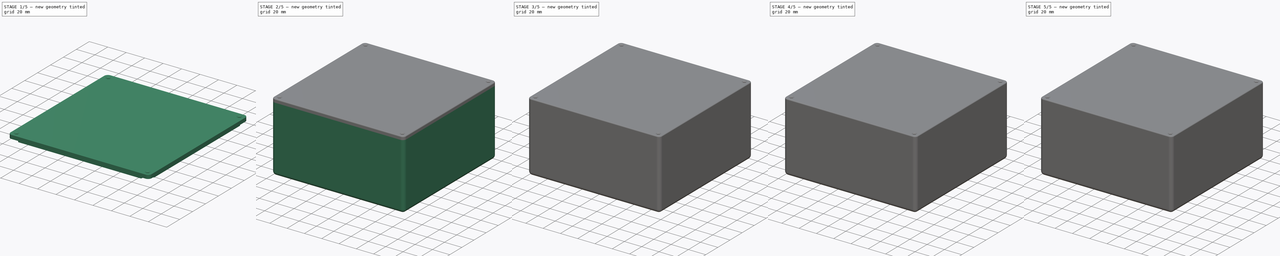
[diagram: build sequence overview — one tinted view per stage of 5, left to right]
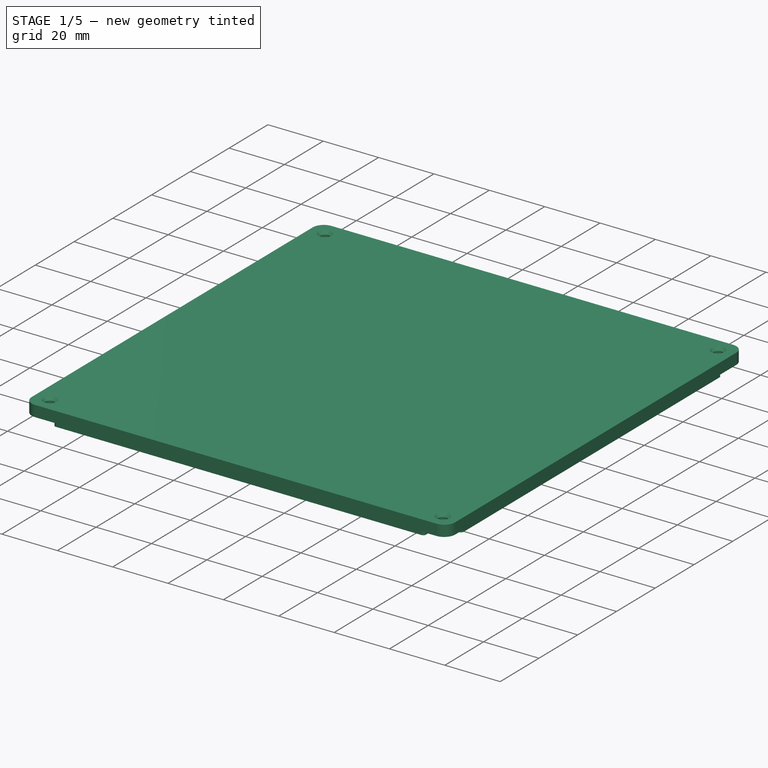
[diagram: stage 1 of 5 — iso view after this stage's code; geometry added in this stage tinted green]
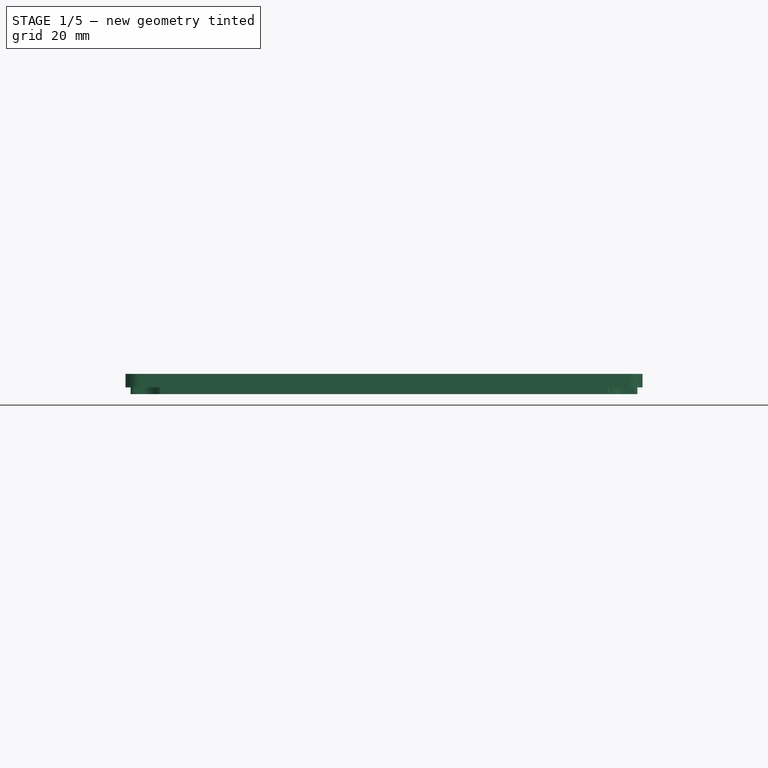
[diagram: stage 1 of 5 — front view after this stage's code; geometry added in this stage tinted green]
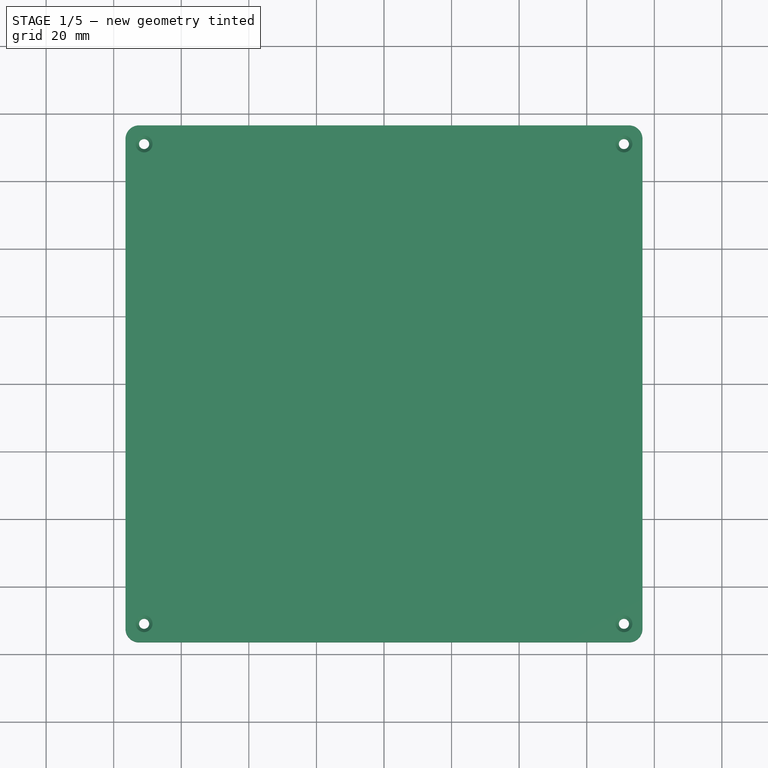
[diagram: stage 1 of 5 — top view after this stage's code; geometry added in this stage tinted green]
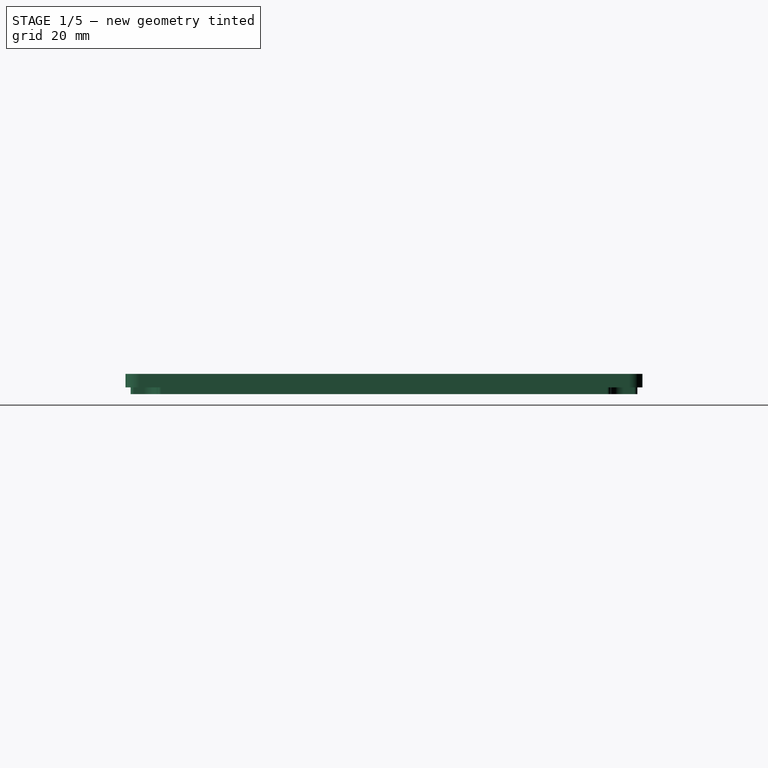
[diagram: stage 1 of 5 — right view after this stage's code; geometry added in this stage tinted green]
FCSTD DOCUMENT  (FreeCAD 1.0R39109 (Git))
Label: generic_parametric_printable_box
License: All rights reserved
LicenseURL: https://en.wikipedia.org/wiki/All_rights_reserved
objects: PartDesign::Body×12, PartDesign::FeatureBase×9, Sketcher::SketchObject×7, PartDesign::Boolean×5, PartDesign::Pad×4, PartDesign::Fillet×4, PartDesign::Mirrored×4, PartDesign::Plane×3, PartDesign::Pocket×3, Spreadsheet::Sheet×2, PartDesign::MultiTransform×2, PartDesign::Chamfer×2, PartDesign::Thickness×1
note: 111 computed .brp shape members not serialized (recipe doc carries the construction recipe); baked Part::Feature solids carry a one-line shape summary decoded from their .brp

FEATURE [PartDesign::Body] Body010
  AllowCompound = false
  Group = -> [Clone008,Thickness,Boolean004,DatumPlane,Sketch002,Pocket,MultiTransform,Mirrored,Mirrored001,Fillet001,Chamfer]
  Origin = -> Origin010
  Tip = -> Chamfer
FEATURE [PartDesign::Plane] DatumPlane001
  AttachmentOffset = pos=(0,0,75) rot=(0,0,1;0rad)
  AttachmentSupport = -> [XY_Plane011]
  Length = 183.6
  MapMode = 5
  Placement = pos=(0,0,75) rot=(0,0,1;0rad)
  ResizeMode = 0
  Width = 183.6
  expr: .AttachmentOffset.Base.z = Spreadsheet.box_inside_height
FEATURE [Sketcher::SketchObject] Sketch003
  ArcFitTolerance = 1e-06
  AttachmentSupport = -> [DatumPlane001]
  FullyConstrained = true
  MakeInternals = false
  MapMode = 5
  Placement = pos=(0,0,75) rot=(0,0,1;0rad)
  expr: Constraints[27] = 4
  expr: Constraints[6] = Spreadsheet.inside_width + Spreadsheet.box_thickness * 2
  expr: Constraints[7] = Spreadsheet.inside_length + Spreadsheet.box_thickness * 2
  sketch-geometry (13):
    g0: LineSegment StartX=-76.5 StartY=72.5 StartZ=0 EndX=-76.5 EndY=-72.5 EndZ=0
    g1: LineSegment StartX=-72.5 StartY=-76.5 StartZ=0 EndX=72.5 EndY=-76.5 EndZ=0
    g2: LineSegment StartX=76.5 StartY=-72.5 StartZ=0 EndX=76.5 EndY=72.5 EndZ=0
    g3: LineSegment StartX=72.5 StartY=76.5 StartZ=0 EndX=-72.5 EndY=76.5 EndZ=0
    g4: GeomPoint [constr] X=0 Y=0 Z=0
    g5: ArcOfCircle CenterX=-72.5 CenterY=72.5 CenterZ=0 NormalX=0 NormalY=0 NormalZ=1 AngleXU=0 Radius=4 StartAngle=1.5708 EndAngle=3.14159
    g6: GeomPoint [constr] X=-76.5 Y=76.5 Z=0
    g7: ArcOfCircle CenterX=72.5 CenterY=72.5 CenterZ=0 NormalX=0 NormalY=0 NormalZ=1 AngleXU=0 Radius=4 StartAngle=-9e-16 EndAngle=1.5708
    g8: GeomPoint [constr] X=76.5 Y=76.5 Z=0
    g9: ArcOfCircle CenterX=72.5 CenterY=-72.5 CenterZ=0 NormalX=0 NormalY=0 NormalZ=1 AngleXU=0 Radius=4 StartAngle=4.71239 EndAngle=6.28319
    g10: GeomPoint [constr] X=76.5 Y=-76.5 Z=0
    g11: ArcOfCircle CenterX=-72.5 CenterY=-72.5 CenterZ=0 NormalX=0 NormalY=0 NormalZ=1 AngleXU=0 Radius=4 StartAngle=3.14159 EndAngle=4.71239
    g12: GeomPoint [constr] X=-76.5 Y=-76.5 Z=0
  constraints (28):
    c: Vertical(g0)
    c: Vertical(g2)
    c: Horizontal(g1)
    c: Horizontal(g3)
    c: Symmetric(g10,g6,g4)
    c: Coincident(g4,g-1)
    c: DistanceX(g6,g8) = 153
    c: DistanceY(g10,g8) = 153
    c: PointOnObject(g6,g0)
    c: PointOnObject(g6,g3)
    c: Tangent(g0,g5) = -1.5708
    c: Tangent(g3,g5) = -1.5708
    c: PointOnObject(g8,g3)
    c: PointOnObject(g8,g2)
    c: Tangent(g3,g7) = -1.5708
    c: Tangent(g2,g7) = -1.5708
    c: PointOnObject(g10,g2)
    c: PointOnObject(g10,g1)
    c: Tangent(g2,g9) = -1.5708
    c: Tangent(g1,g9) = -1.5708
    c: PointOnObject(g12,g1)
    c: PointOnObject(g12,g0)
    c: Tangent(g1,g11) = -1.5708
    c: Tangent(g0,g11) = -1.5708
    c: Equal(g5,g7)
    c: Equal(g7,g9)
    c: Equal(g9,g11)
    c: Radius(g11) = 4
FEATURE [PartDesign::Pad] Pad002
  Direction = (0,0,1)
  Length = 4
  Length2 = 10
  Placement = pos=(0,0,75) rot=(0,0,1;0rad)
  Profile = -> Sketch003
  ReferenceAxis = -> Sketch003 [N_Axis]
  Refine = true
  Suppressed = false
  Type = 0
FEATURE [Sketcher::SketchObject] Sketch004
  ArcFitTolerance = 1e-06
  AttachmentSupport = -> [DatumPlane001]
  FullyConstrained = true
  MakeInternals = false
  MapMode = 5
  Placement = pos=(0,0,75) rot=(0,0,1;0rad)
  expr: Constraints[14] = Spreadsheet.inside_length
  expr: Constraints[15] = Spreadsheet.inside_width
  sketch-geometry (36):
    g0: LineSegment StartX=67 StartY=74 StartZ=0 EndX=67 EndY=71 EndZ=0
    g1: LineSegment StartX=71 StartY=67 StartZ=0 EndX=74 EndY=67 EndZ=0
    g2: LineSegment StartX=75 StartY=66 StartZ=0 EndX=75 EndY=-66 EndZ=0
    g3: LineSegment StartX=74 StartY=-67 StartZ=0 EndX=71 EndY=-67 EndZ=0
    g4: LineSegment StartX=67 StartY=-71 StartZ=0 EndX=67 EndY=-74 EndZ=0
    g5: LineSegment StartX=66 StartY=-75 StartZ=0 EndX=-66 EndY=-75 EndZ=0
    g6: LineSegment StartX=-67 StartY=-74 StartZ=0 EndX=-67 EndY=-71 EndZ=0
    g7: LineSegment StartX=-71 StartY=-67 StartZ=0 EndX=-74 EndY=-67 EndZ=0
    g8: LineSegment StartX=-75 StartY=-66 StartZ=0 EndX=-75 EndY=66 EndZ=0
    g9: LineSegment StartX=-74 StartY=67 StartZ=0 EndX=-71 EndY=67 EndZ=0
    g10: LineSegment StartX=-67 StartY=71 StartZ=0 EndX=-67 EndY=74 EndZ=0
    g11: LineSegment StartX=-66 StartY=75 StartZ=0 EndX=66 EndY=75 EndZ=0
    g12: ArcOfCircle CenterX=-71 CenterY=71 CenterZ=0 NormalX=0 NormalY=0 NormalZ=1 AngleXU=0 Radius=4 StartAngle=4.71239 EndAngle=6.28319
    g13: GeomPoint [constr] X=-67 Y=67 Z=0
    g14: ArcOfCircle CenterX=71 CenterY=71 CenterZ=0 NormalX=0 NormalY=0 NormalZ=1 AngleXU=0 Radius=4 StartAngle=3.14159 EndAngle=4.71239
    g15: GeomPoint [constr] X=67 Y=67 Z=0
    g16: ArcOfCircle CenterX=-71 CenterY=-71 CenterZ=0 NormalX=0 NormalY=0 NormalZ=1 AngleXU=0 Radius=4 StartAngle=-1.8e-15 EndAngle=1.5708
    g17: GeomPoint [constr] X=-67 Y=-67 Z=0
    g18: ArcOfCircle CenterX=71 CenterY=-71 CenterZ=0 NormalX=0 NormalY=0 NormalZ=1 AngleXU=0 Radius=4 StartAngle=1.5708 EndAngle=3.14159
    g19: GeomPoint [constr] X=67 Y=-67 Z=0
    g20: ArcOfCircle CenterX=-74 CenterY=-66 CenterZ=0 NormalX=0 NormalY=0 NormalZ=1 AngleXU=0 Radius=1 StartAngle=3.14159 EndAngle=4.71239
    g21: GeomPoint [constr] X=-75 Y=-67 Z=0
    g22: ArcOfCircle CenterX=-66 CenterY=-74 CenterZ=0 NormalX=0 NormalY=0 NormalZ=1 AngleXU=0 Radius=1 StartAngle=3.14159 EndAngle=4.71239
    g23: GeomPoint [constr] X=-67 Y=-75 Z=0
    g24: ArcOfCircle CenterX=66 CenterY=-74 CenterZ=0 NormalX=0 NormalY=0 NormalZ=1 AngleXU=0 Radius=1 StartAngle=4.71239 EndAngle=6.28319
    g25: GeomPoint [constr] X=67 Y=-75 Z=0
    g26: ArcOfCircle CenterX=74 CenterY=-66 CenterZ=0 NormalX=0 NormalY=0 NormalZ=1 AngleXU=0 Radius=1 StartAngle=4.71239 EndAngle=6.28319
    g27: GeomPoint [constr] X=75 Y=-67 Z=0
    g28: ArcOfCircle CenterX=74 CenterY=66 CenterZ=0 NormalX=0 NormalY=0 NormalZ=1 AngleXU=0 Radius=1 StartAngle=-9e-16 EndAngle=1.5708
    g29: GeomPoint [constr] X=75 Y=67 Z=0
    g30: ArcOfCircle CenterX=66 CenterY=74 CenterZ=0 NormalX=0 NormalY=0 NormalZ=1 AngleXU=0 Radius=1 StartAngle=4.2e-15 EndAngle=1.5708
    g31: GeomPoint [constr] X=67 Y=75 Z=0
    g32: ArcOfCircle CenterX=-66 CenterY=74 CenterZ=0 NormalX=0 NormalY=0 NormalZ=1 AngleXU=0 Radius=1 StartAngle=1.5708 EndAngle=3.14159
    g33: GeomPoint [constr] X=-67 Y=75 Z=0
    g34: ArcOfCircle CenterX=-74 CenterY=66 CenterZ=0 NormalX=0 NormalY=0 NormalZ=1 AngleXU=0 Radius=1 StartAngle=1.5708 EndAngle=3.14159
    g35: GeomPoint [constr] X=-75 Y=67 Z=0
  constraints (79):
    c: Vertical(g0)
    c: Horizontal(g1)
    c: Vertical(g2)
    c: Horizontal(g3)
    c: Horizontal(g5)
    c: Vertical(g6)
    c: Horizontal(g7)
    c: Vertical(g8)
    c: Horizontal(g9)
    c: Vertical(g10)
    c: Symmetric(g33,g31,g-2)
    c: Symmetric(g17,g19,g-2)
    c: Symmetric(g31,g25,g-1)
    c: Symmetric(g19,g15,g-1)
    c: DistanceY(g25,g31) = 150
    c: DistanceX(g21,g27) = 150
    c: PointOnObject(g13,g10)
    c: PointOnObject(g13,g9)
    c: Tangent(g10,g12) = -1.5708
    c: Tangent(g9,g12) = -1.5708
    c: PointOnObject(g15,g0)
    c: PointOnObject(g15,g1)
    c: Tangent(g0,g14) = -1.5708
    c: Tangent(g1,g14) = -1.5708
    c: PointOnObject(g17,g7)
    c: PointOnObject(g17,g6)
    c: Tangent(g7,g16) = -1.5708
    c: Tangent(g6,g16) = -1.5708
    c: PointOnObject(g19,g3)
    c: PointOnObject(g19,g4)
    c: Tangent(g3,g18) = -1.5708
    c: Tangent(g4,g18) = -1.5708
    c: PointOnObject(g21,g8)
    c: PointOnObject(g21,g7)
    c: Tangent(g8,g20) = 1.5708
    c: Tangent(g7,g20) = 1.5708
    c: PointOnObject(g23,g6)
    c: PointOnObject(g23,g5)
    c: Tangent(g6,g22) = 1.5708
    c: Tangent(g5,g22) = 1.5708
    c: PointOnObject(g25,g4)
    c: PointOnObject(g25,g5)
    c: Tangent(g4,g24) = 1.5708
    c: Tangent(g5,g24) = 1.5708
    c: PointOnObject(g27,g3)
    c: PointOnObject(g27,g2)
    c: Tangent(g3,g26) = 1.5708
    c: Tangent(g2,g26) = 1.5708
    c: PointOnObject(g29,g1)
    c: PointOnObject(g29,g2)
    c: Tangent(g1,g28) = 1.5708
    c: Tangent(g2,g28) = 1.5708
    c: PointOnObject(g31,g11)
    c: PointOnObject(g31,g0)
    c: Tangent(g11,g30) = 1.5708
    c: Tangent(g0,g30) = 1.5708
    c: PointOnObject(g33,g11)
    c: PointOnObject(g33,g10)
    c: Tangent(g11,g32) = 1.5708
    c: Tangent(g10,g32) = 1.5708
    c: PointOnObject(g35,g9)
    c: PointOnObject(g35,g8)
    c: Tangent(g9,g34) = 1.5708
    c: Tangent(g8,g34) = 1.5708
    c: Equal(g16,g18)
    c: Equal(g18,g12)
    c: Equal(g12,g14)
    c: Radius(g12) = 4
    c: Equal(g34,g32)
    c: Equal(g32,g30)
    c: Equal(g30,g28)
    c: Equal(g28,g26)
    c: Equal(g26,g24)
    c: Equal(g24,g22)
    c: Equal(g22,g20)
    c: Radius(g32) = 1
    c: DistanceY(g15,g31) = 8
    c: Symmetric(g29,g35,g-2)
    c: DistanceX(g15,g29) = 8
FEATURE [PartDesign::Pad] Pad003
  BaseFeature = -> Pad002
  Direction = (0,0,1)
  Length = 2
  Length2 = 10
  Placement = pos=(0,0,75) rot=(0,0,1;0rad)
  Profile = -> Sketch004
  ReferenceAxis = -> Sketch004 [N_Axis]
  Refine = true
  Reversed = true
  Suppressed = false
  Type = 0
FEATURE [PartDesign::Plane] DatumPlane002
  AttachmentOffset = pos=(0,0,73) rot=(0,0,1;0rad)
  AttachmentSupport = -> [XY_Plane011]
  Length = 183.6
  MapMode = 5
  Placement = pos=(0,0,73) rot=(0,0,1;0rad)
  ResizeMode = 0
  Width = 183.6
  expr: .AttachmentOffset.Base.z = Spreadsheet.box_inside_height - 2
FEATURE [Sketcher::SketchObject] Sketch005
  ArcFitTolerance = 1e-06
  AttachmentSupport = -> [DatumPlane002]
  FullyConstrained = true
  MakeInternals = false
  MapMode = 5
  Placement = pos=(0,0,73) rot=(0,0,1;0rad)
  expr: Constraints[69] = Spreadsheet.inside_length - 2
  expr: Constraints[70] = Spreadsheet.inside_width - 2
  sketch-geometry (36):
    g0: LineSegment StartX=-65.5 StartY=74 StartZ=0 EndX=65.5 EndY=74 EndZ=0
    g1: LineSegment StartX=66 StartY=73.5 StartZ=0 EndX=66 EndY=71 EndZ=0
    g2: LineSegment StartX=71 StartY=66 StartZ=0 EndX=73.5 EndY=66 EndZ=0
    g3: LineSegment StartX=74 StartY=65.5 StartZ=0 EndX=74 EndY=-65.5 EndZ=0
    g4: LineSegment StartX=73.5 StartY=-66 StartZ=0 EndX=71 EndY=-66 EndZ=0
    g5: LineSegment StartX=66 StartY=-71 StartZ=0 EndX=66 EndY=-73.5 EndZ=0
    g6: LineSegment StartX=65.5 StartY=-74 StartZ=0 EndX=-65.5 EndY=-74 EndZ=0
    g7: LineSegment StartX=-66 StartY=-73.5 StartZ=0 EndX=-66 EndY=-71 EndZ=0
    g8: LineSegment StartX=-71 StartY=-66 StartZ=0 EndX=-73.5 EndY=-66 EndZ=0
    g9: LineSegment StartX=-74 StartY=-65.5 StartZ=0 EndX=-74 EndY=65.5 EndZ=0
    g10: LineSegment StartX=-73.5 StartY=66 StartZ=0 EndX=-71 EndY=66 EndZ=0
    g11: LineSegment StartX=-66 StartY=71 StartZ=0 EndX=-66 EndY=73.5 EndZ=0
    g12: ArcOfCircle CenterX=-65.5 CenterY=73.5 CenterZ=0 NormalX=0 NormalY=0 NormalZ=1 AngleXU=0 Radius=0.5 StartAngle=1.5708 EndAngle=3.14159
    g13: GeomPoint [constr] X=-66 Y=74 Z=0
    g14: ArcOfCircle CenterX=65.5 CenterY=73.5 CenterZ=0 NormalX=0 NormalY=0 NormalZ=1 AngleXU=0 Radius=0.5 StartAngle=1.4e-15 EndAngle=1.5708
    g15: GeomPoint [constr] X=66 Y=74 Z=0
    g16: ArcOfCircle CenterX=71 CenterY=71 CenterZ=0 NormalX=0 NormalY=0 NormalZ=1 AngleXU=0 Radius=5 StartAngle=3.14159 EndAngle=4.71239
    g17: GeomPoint [constr] X=66 Y=66 Z=0
    g18: ArcOfCircle CenterX=73.5 CenterY=65.5 CenterZ=0 NormalX=0 NormalY=0 NormalZ=1 AngleXU=0 Radius=0.5 StartAngle=9.5e-15 EndAngle=1.5708
    g19: GeomPoint [constr] X=74 Y=66 Z=0
    g20: ArcOfCircle CenterX=73.5 CenterY=-65.5 CenterZ=0 NormalX=0 NormalY=0 NormalZ=1 AngleXU=0 Radius=0.5 StartAngle=4.71239 EndAngle=6.28319
    g21: GeomPoint [constr] X=74 Y=-66 Z=0
    g22: ArcOfCircle CenterX=71 CenterY=-71 CenterZ=0 NormalX=0 NormalY=0 NormalZ=1 AngleXU=0 Radius=5 StartAngle=1.5708 EndAngle=3.14159
    g23: GeomPoint [constr] X=66 Y=-66 Z=0
    g24: ArcOfCircle CenterX=65.5 CenterY=-73.5 CenterZ=0 NormalX=0 NormalY=0 NormalZ=1 AngleXU=0 Radius=0.5 StartAngle=4.71239 EndAngle=6.28319
    g25: GeomPoint [constr] X=66 Y=-74 Z=0
    g26: ArcOfCircle CenterX=-65.5 CenterY=-73.5 CenterZ=0 NormalX=0 NormalY=0 NormalZ=1 AngleXU=0 Radius=0.5 StartAngle=3.14159 EndAngle=4.71239
    g27: GeomPoint [constr] X=-66 Y=-74 Z=0
    g28: ArcOfCircle CenterX=-71 CenterY=-71 CenterZ=0 NormalX=0 NormalY=0 NormalZ=1 AngleXU=0 Radius=5 StartAngle=0 EndAngle=1.5708
    g29: GeomPoint [constr] X=-66 Y=-66 Z=0
    g30: ArcOfCircle CenterX=-73.5 CenterY=-65.5 CenterZ=0 NormalX=0 NormalY=0 NormalZ=1 AngleXU=0 Radius=0.5 StartAngle=3.14159 EndAngle=4.71239
    g31: GeomPoint [constr] X=-74 Y=-66 Z=0
    g32: ArcOfCircle CenterX=-73.5 CenterY=65.5 CenterZ=0 NormalX=0 NormalY=0 NormalZ=1 AngleXU=0 Radius=0.5 StartAngle=1.5708 EndAngle=3.14159
    g33: GeomPoint [constr] X=-74 Y=66 Z=0
    g34: ArcOfCircle CenterX=-71 CenterY=71 CenterZ=0 NormalX=0 NormalY=0 NormalZ=1 AngleXU=0 Radius=5 StartAngle=4.71239 EndAngle=6.28319
    g35: GeomPoint [constr] X=-66 Y=66 Z=0
  constraints (78):
    c: Vertical(g1)
    c: Horizontal(g2)
    c: Horizontal(g4)
    c: Vertical(g5)
    c: Vertical(g7)
    c: Horizontal(g8)
    c: Vertical(g9)
    c: Horizontal(g10)
    c: Vertical(g11)
    c: Symmetric(g13,g15,g-2)
    c: Symmetric(g19,g33,g-2)
    c: Symmetric(g27,g25,g-2)
    c: Symmetric(g15,g25,g-1)
    c: Symmetric(g21,g19,g-1)
    c: PointOnObject(g13,g11)
    c: PointOnObject(g13,g0)
    c: Tangent(g11,g12) = 1.5708
    c: Tangent(g0,g12) = 1.5708
    c: PointOnObject(g15,g0)
    c: PointOnObject(g15,g1)
    c: Tangent(g0,g14) = 1.5708
    c: Tangent(g1,g14) = 1.5708
    c: PointOnObject(g17,g1)
    c: PointOnObject(g17,g2)
    c: Tangent(g1,g16) = -1.5708
    c: Tangent(g2,g16) = -1.5708
    c: PointOnObject(g19,g2)
    c: PointOnObject(g19,g3)
    c: Tangent(g2,g18) = 1.5708
    c: Tangent(g3,g18) = 1.5708
    c: PointOnObject(g21,g3)
    c: PointOnObject(g21,g4)
    c: Tangent(g3,g20) = 1.5708
    c: Tangent(g4,g20) = 1.5708
    c: PointOnObject(g23,g4)
    c: PointOnObject(g23,g5)
    c: Tangent(g4,g22) = -1.5708
    c: Tangent(g5,g22) = -1.5708
    c: PointOnObject(g25,g5)
    c: PointOnObject(g25,g6)
    c: Tangent(g5,g24) = 1.5708
    c: Tangent(g6,g24) = 1.5708
    c: PointOnObject(g27,g6)
    c: PointOnObject(g27,g7)
    c: Tangent(g6,g26) = 1.5708
    c: Tangent(g7,g26) = 1.5708
    c: PointOnObject(g29,g7)
    c: PointOnObject(g29,g8)
    c: Tangent(g7,g28) = -1.5708
    c: Tangent(g8,g28) = -1.5708
    c: PointOnObject(g31,g8)
    c: PointOnObject(g31,g9)
    c: Tangent(g8,g30) = 1.5708
    c: Tangent(g9,g30) = 1.5708
    c: PointOnObject(g33,g10)
    c: Tangent(g9,g32) = 1.5708
    c: Tangent(g10,g32) = 1.5708
    c: PointOnObject(g35,g10)
    c: PointOnObject(g35,g11)
    c: Tangent(g10,g34) = -1.5708
    c: Tangent(g11,g34) = -1.5708
    c: Equal(g12,g14)
    c: Equal(g14,g18)
    c: Equal(g18,g32)
    c: Equal(g32,g30)
    c: Equal(g30,g26)
    c: Equal(g26,g24)
    c: Equal(g24,g20)
    c: Radius(g12) = 0.5
    c: DistanceY(g25,g15) = 148
    c: DistanceX(g33,g19) = 148
    c: DistanceX(g17,g19) = 8
    c: DistanceY(g17,g15) = 8
    c: Equal(g34,g16)
    c: Equal(g16,g28)
    c: Equal(g28,g22)
    c: Radius(g22) = 5
    c: Symmetric(g31,g21,g-2)
FEATURE [PartDesign::Pocket] Pocket001
  BaseFeature = -> Pad003
  Direction = (0,0,-1)
  Length = 5
  Length2 = 5
  Placement = pos=(0,0,75) rot=(0,0,1;0rad)
  Profile = -> Sketch005
  ReferenceAxis = -> Sketch005 [N_Axis]
  Refine = true
  Reversed = true
  Suppressed = false
  Type = 0
FEATURE [Sketcher::SketchObject] Sketch006
  ArcFitTolerance = 1e-06
  AttachmentSupport = -> [XY_Plane011]
  FullyConstrained = true
  MakeInternals = false
  MapMode = 5
  expr: Constraints[0] = Spreadsheet.inside_length * 0.5 - 4
  expr: Constraints[1] = Spreadsheet.inside_width * 0.5 - 4
  sketch-geometry (1):
    g0: Circle CenterX=-71 CenterY=-71 CenterZ=0 NormalX=0 NormalY=0 NormalZ=1 AngleXU=0 Radius=1.5
  constraints (3):
    c: DistanceY(g0,g-1) = 71
    c: DistanceX(g0,g-1) = 71
    c: Diameter(g0) = 3
FEATURE [PartDesign::Pocket] Pocket002
  BaseFeature = -> Pocket001
  Direction = (0,0,-1)
  Length = 5
  Length2 = 5
  Midplane = true
  Placement = pos=(0,0,75) rot=(0,0,1;0rad)
  Profile = -> Sketch006
  ReferenceAxis = -> Sketch006 [N_Axis]
  Refine = true
  Suppressed = false
  Type = 1
FEATURE [PartDesign::Mirrored] Mirrored002
  MirrorPlane = -> Sketch006 [V_Axis]
  Placement = pos=(0,0,75) rot=(0,0,1;0rad)
  Refine = true
  Suppressed = false
  TransformMode = 0
FEATURE [PartDesign::Mirrored] Mirrored003
  MirrorPlane = -> Sketch006 [H_Axis]
  Placement = pos=(0,0,75) rot=(0,0,1;0rad)
  Refine = true
  Suppressed = false
  TransformMode = 0
FEATURE [PartDesign::MultiTransform] MultiTransform001
  BaseFeature = -> Pocket002
  Originals = -> [Pocket002]
  Placement = pos=(0,0,75) rot=(0,0,1;0rad)
  Refine = true
  Suppressed = false
  TransformMode = 0
  Transformations = -> [Mirrored002,Mirrored003]
FEATURE [PartDesign::Chamfer] Chamfer001
  Angle = 45
  Base = -> MultiTransform001 [Edge52,Edge51,Edge49,Edge50]
  BaseFeature = -> MultiTransform001
  ChamferType = 0
  FlipDirection = false
  Placement = pos=(0,0,75) rot=(0,0,1;0rad)
  Refine = true
  Size = 1
  Size2 = 1
  SupportTransform = false
  Suppressed = false
  UseAllEdges = false
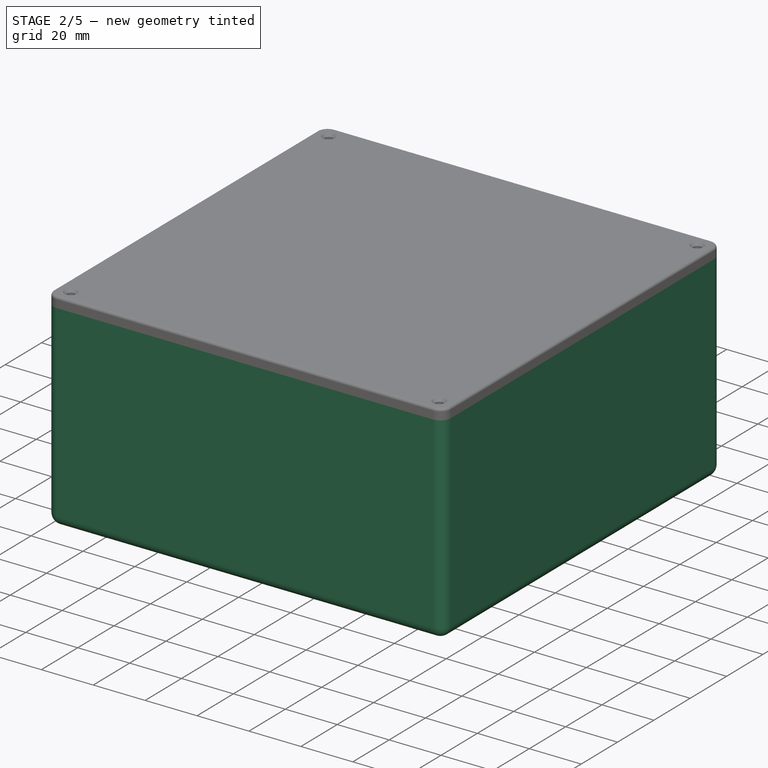
[diagram: stage 2 of 5 — iso view after this stage's code; geometry added in this stage tinted green]
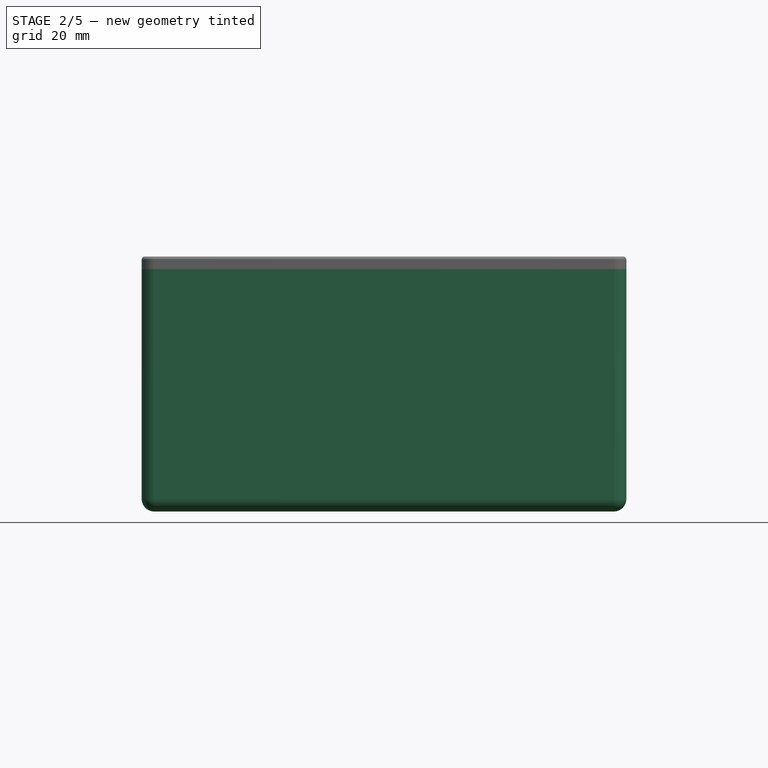
[diagram: stage 2 of 5 — front view after this stage's code; geometry added in this stage tinted green]
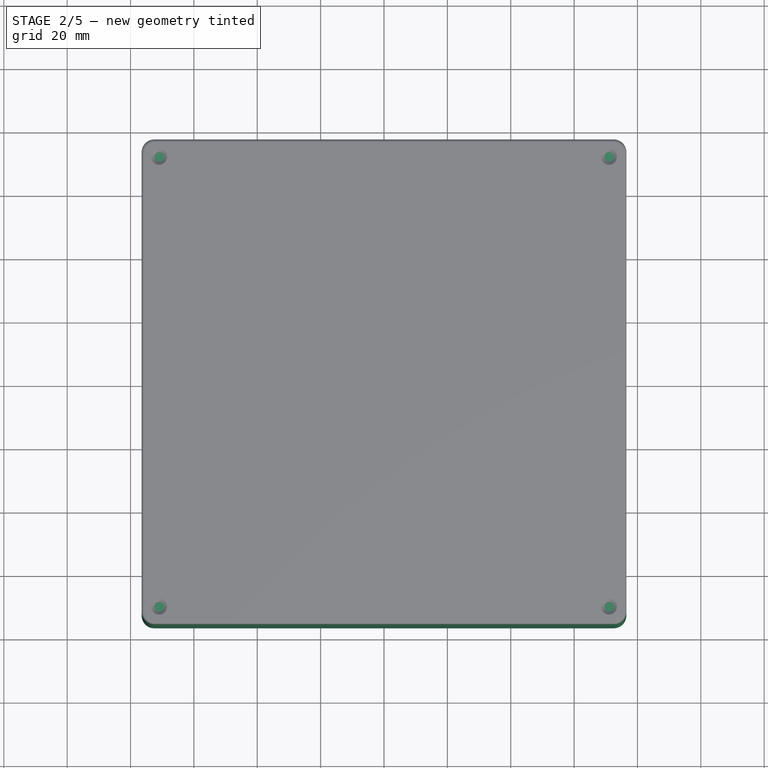
[diagram: stage 2 of 5 — top view after this stage's code; geometry added in this stage tinted green]
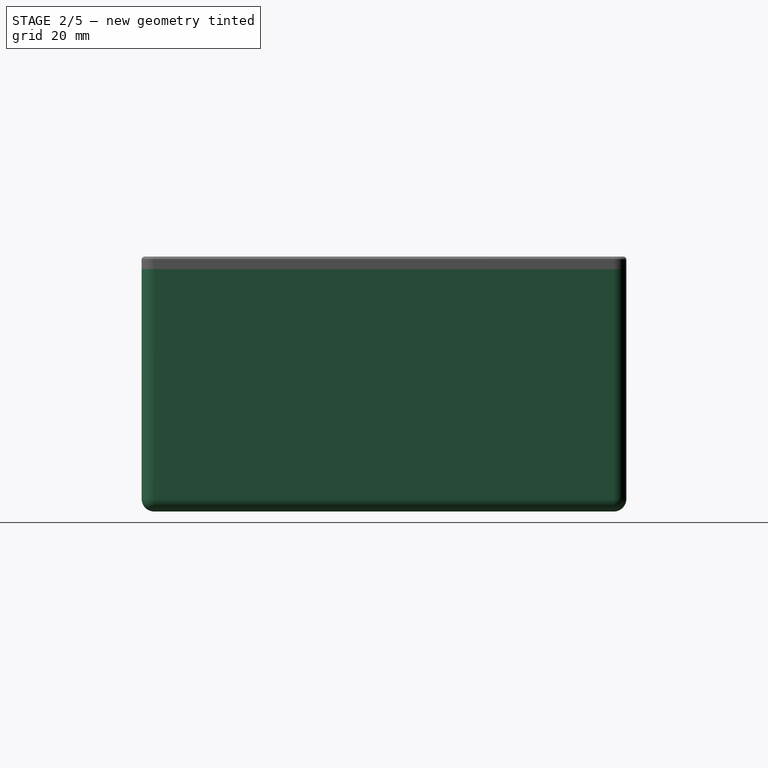
[diagram: stage 2 of 5 — right view after this stage's code; geometry added in this stage tinted green]
FEATURE [Spreadsheet::Sheet] Spreadsheet  label="Parameters"
  cells = A1='inside_length; B1(inside_length)=150; C1='mm; D1='min = 20 mm; A2='inside_width; B2(inside_width)=150; C2='mm; D2='min = 20 mm; A3='box_inside_height; B3(box_inside_height)=75; C3='mm; D3='min = 4 mm; A4='box_thickness; B4(box_thickness)=1.5; C4='mm
FEATURE [Sketcher::SketchObject] Sketch
  ArcFitTolerance = 1e-06
  AttachmentSupport = -> [XY_Plane]
  FullyConstrained = true
  MakeInternals = false
  MapMode = 5
  expr: Constraints[10] = Spreadsheet.inside_width
  expr: Constraints[11] = Spreadsheet.inside_length
  sketch-geometry (5):
    g0: LineSegment StartX=-75 StartY=75 StartZ=0 EndX=-75 EndY=-75 EndZ=0
    g1: LineSegment StartX=-75 StartY=-75 StartZ=0 EndX=75 EndY=-75 EndZ=0
    g2: LineSegment StartX=75 StartY=-75 StartZ=0 EndX=75 EndY=75 EndZ=0
    g3: LineSegment StartX=75 StartY=75 StartZ=0 EndX=-75 EndY=75 EndZ=0
    g4: GeomPoint [constr] X=0 Y=0 Z=0
  constraints (12):
    c: Coincident(g0,g1)
    c: Coincident(g1,g2)
    c: Coincident(g2,g3)
    c: Coincident(g3,g0)
    c: Vertical(g0)
    c: Vertical(g2)
    c: Horizontal(g1)
    c: Horizontal(g3)
    c: Symmetric(g2,g0,g4)
    c: Coincident(g4,g-1)
    c: DistanceX(g3,g3) = 150
    c: DistanceY(g2,g2) = 150
FEATURE [PartDesign::Pad] Pad
  Direction = (0,0,1)
  Length = 75
  Length2 = 10
  Profile = -> Sketch
  ReferenceAxis = -> Sketch [N_Axis]
  Refine = true
  Suppressed = false
  Type = 0
  expr: Length = Spreadsheet.box_inside_height
FEATURE [PartDesign::Fillet] Fillet
  Base = -> Pad [Edge2,Edge5,Edge6,Edge9,Edge8,Edge3,Edge1,Edge11]
  BaseFeature = -> Pad
  Radius = 2.5
  Refine = true
  SupportTransform = false
  Suppressed = false
  UseAllEdges = false
  expr: Radius = Spreadsheet.box_thickness + 1
FEATURE [PartDesign::Body] Body006
  AllowCompound = false
  Group = -> [Clone004,Boolean003]
  Origin = -> Origin006
  Tip = -> Boolean003
FEATURE [PartDesign::FeatureBase] Clone008
  BaseFeature = -> Body
  Suppressed = false
FEATURE [PartDesign::Thickness] Thickness
  Base = -> Clone008 [Face2]
  BaseFeature = -> Clone008
  Intersection = false
  Join = 0
  Mode = 0
  Refine = true
  SupportTransform = false
  Suppressed = false
  Value = 1.5
  expr: Value = Spreadsheet.box_thickness
FEATURE [PartDesign::Fillet] Fillet002
  Base = -> Chamfer001 [Edge9,Edge7,Edge5,Edge3,Edge2,Edge4,Edge6,Edge8]
  BaseFeature = -> Chamfer001
  Placement = pos=(0,0,75) rot=(0,0,1;0rad)
  Radius = 1
  Refine = true
  SupportTransform = false
  Suppressed = false
  UseAllEdges = false
FEATURE [PartDesign::Fillet] Fillet003
  Base = -> Fillet002 [Face76]
  BaseFeature = -> Fillet002
  Placement = pos=(0,0,75) rot=(0,0,1;0rad)
  Radius = 0.5
  Refine = true
  SupportTransform = false
  Suppressed = false
  UseAllEdges = false
FEATURE [PartDesign::Body] Body011
  AllowCompound = false
  Group = -> [DatumPlane001,Sketch003,Pad002,Sketch004,Pad003,Sketch005,DatumPlane002,Pocket001,Sketch006,Pocket002,MultiTransform001,Mirrored002,Mirrored003,Chamfer001,Fillet002,Fillet003]
  Origin = -> Origin011
  Tip = -> Fillet003
FEATURE [Spreadsheet::Sheet] Spreadsheet001  label="Configurations"
  cells = A1='Partnumber; B1='inside_length (mm); C1='inside_width (mm); D1='box_inside_height (mm); E1='box_thickness (mm); A2='GPPB-00001; B2=88; C2=34; D2=27; E2=1.5; A3='GPPB-00002; B3=25; C3=25; D3=25; E3=1.5; A4='GPPB-00003; B4=30; C4=25; D4=25; E4=1.5; A5='GPPB-00004; B5=30; C5=30; D5=25; E5=1.5; A6='GPPB-00005; B6=35; C6=30; D6=25; E6=1.5; A7='GPPB-00006; B7=35; C7=35; D7=25; E7=1.5; A8='GPPB-00007; B8=40; C8=35; D8=25; E8=1.5; A9='GPPB-00008; B9=40; C9=40; D9=25; E9=1.5; A10='GPPB-00009; B10=45; C10=40; D10=25; E10=1.5; A11='GPPB-00010; B11=45; C11=45; D11=25; E11=1.5; A12='GPPB-00011; B12=50; C12=45; D12=25; E12=1.5; A13='GPPB-00012; B13=50; C13=50; D13=25; E13=1.5; A14='GPPB-00013; B14=55; C14=50; D14=25; E14=1.5; A15='GPPB-00014; B15=55; C15=55; D15=25; E15=1.5; A16='GPPB-00015; B16=60; C16=55; D16=25; E16=1.5; A17='GPPB-00016; B17=60; C17=60; D17=25; E17=1.5; A18='GPPB-00017; B18=65; C18=60; D18=25; E18=1.5; A19='GPPB-00018; B19=65; C19=65; D19=25; E19=1.5; A20='GPPB-00019; B20=70; C20=65; D20=25; E20=1.5; A21='GPPB-00020; B21=70; C21=70; D21=25; E21=1.5; A22='GPPB-00021; B22=75; C22=70; D22=25; E22=1.5; A23='GPPB-00022; B23=75; C23=75; D23=25; E23=1.5; A24='GPPB-00023; B24=80; C24=75; D24=25; E24=1.5; A25='GPPB-00024; B25=80; C25=80; D25=25; E25=1.5; A26='GPPB-00025; B26=85; C26=80; D26=25; E26=1.5; A27='GPPB-00026; B27=85; C27=85; D27=25; E27=1.5; A28='GPPB-00027; B28=90; C28=85; D28=25; E28=1.5; A29='GPPB-00028; B29=90; C29=90; D29=25; E29=1.5; A30='GPPB-00029; B30=95; C30=90; D30=25; E30=1.5; A31='GPPB-00030; B31=95; C31=95; D31=25; E31=1.5; A32='GPPB-00031; B32=100; C32=95; D32=25; E32=1.5; A33='GPPB-00032; B33=100; C33=100; D33=25; E33=1.5; A34='GPPB-00033; B34=105; C34=100; D34=25; E34=1.5; A35='GPPB-00034; B35=105; C35=105; D35=25; E35=1.5; A36='GPPB-00035; B36=110; C36=105; D36=25; E36=1.5; A37='GPPB-00036; B37=115; C37=110; D37=25; E37=1.5; A38='GPPB-00037; B38=115; C38=115; D38=25; E38=1.5; A39='GPPB-00038; B39=120; C39=115; D39=25; E39=1.5; A40='GPPB-00039; B40=120; C40=120; D40=25; E40=1.5; +1310 more cells
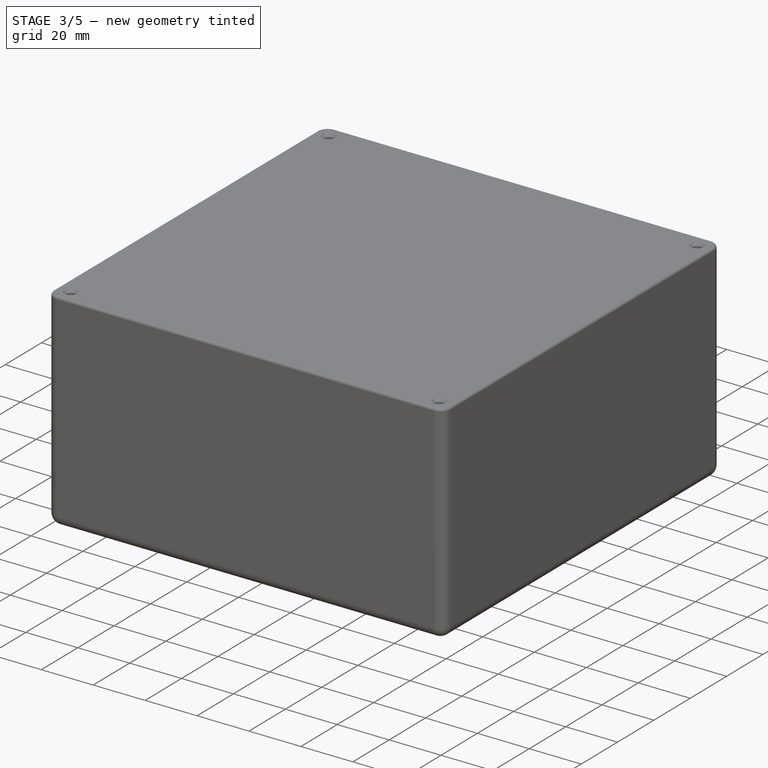
[diagram: stage 3 of 5 — iso view after this stage's code; geometry added in this stage tinted green]
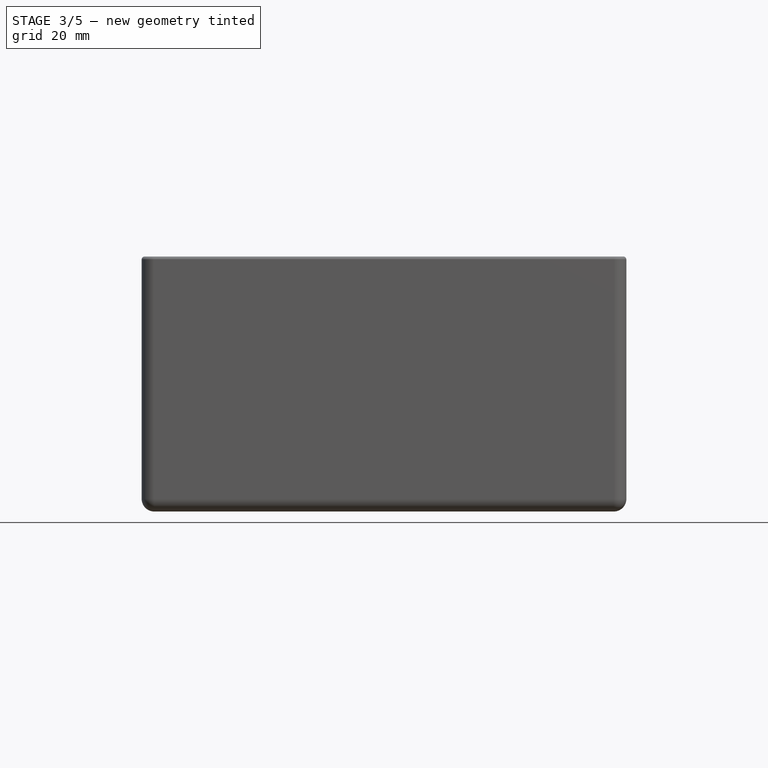
[diagram: stage 3 of 5 — front view after this stage's code; geometry added in this stage tinted green]
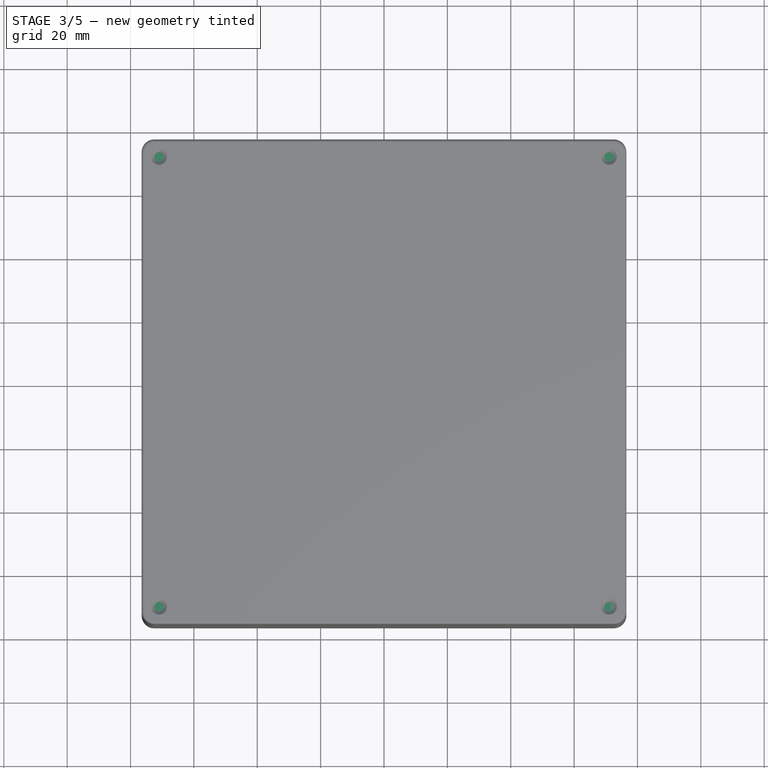
[diagram: stage 3 of 5 — top view after this stage's code; geometry added in this stage tinted green]
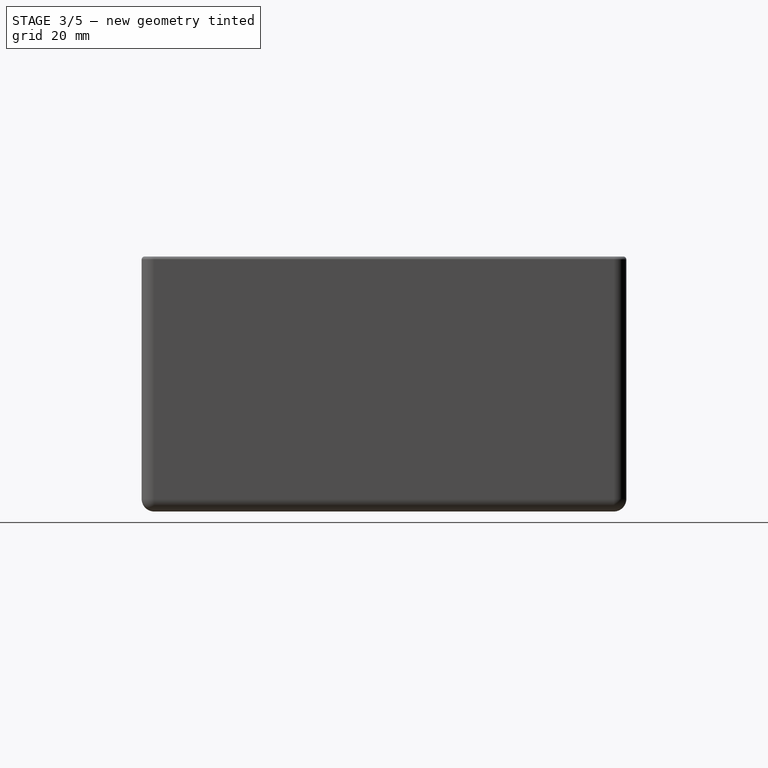
[diagram: stage 3 of 5 — right view after this stage's code; geometry added in this stage tinted green]
FEATURE [PartDesign::Body] Body
  AllowCompound = false
  Group = -> [Sketch,Pad,Fillet]
  Origin = -> Origin
  Tip = -> Fillet
FEATURE [Sketcher::SketchObject] Sketch001
  ArcFitTolerance = 1e-06
  AttachmentSupport = -> [XY_Plane001]
  FullyConstrained = true
  MakeInternals = false
  MapMode = 5
  expr: Constraints[10] = Spreadsheet.box_thickness + 6
  expr: Constraints[11] = Spreadsheet.box_thickness + 6
  expr: Constraints[9] = 4
  sketch-geometry (5):
    g0: LineSegment StartX=-4 StartY=-7.5 StartZ=0 EndX=-4 EndY=9e-16 EndZ=0
    g1: ArcOfCircle CenterX=0 CenterY=0 CenterZ=0 NormalX=0 NormalY=0 NormalZ=1 AngleXU=0 Radius=4 StartAngle=1.5708 EndAngle=3.14159
    g2: LineSegment StartX=-6e-16 StartY=4 StartZ=0 EndX=7.5 EndY=4 EndZ=0
    g3: LineSegment StartX=7.5 StartY=4 StartZ=0 EndX=7.5 EndY=-7.5 EndZ=0
    g4: LineSegment StartX=7.5 StartY=-7.5 StartZ=0 EndX=-4 EndY=-7.5 EndZ=0
  constraints (13):
    c: Vertical(g0)
    c: Tangent(g0,g1) = 1.5708
    c: Horizontal(g2)
    c: Coincident(g2,g3)
    c: Vertical(g3)
    c: Coincident(g3,g4)
    c: Coincident(g4,g0)
    c: Horizontal(g4)
    c: Tangent(g1,g2) = 1.5708
    c: DistanceY(g1,g1) = 4
    c: DistanceX(g-1,g2) = 7.5
    c: DistanceY(g0,g-1) = 7.5
    c: Coincident(g1,g-1)
FEATURE [PartDesign::Pad] Pad001
  Direction = (0,0,1)
  Length = 75
  Length2 = 10
  Profile = -> Sketch001
  ReferenceAxis = -> Sketch001 [N_Axis]
  Refine = true
  Suppressed = false
  Type = 0
  expr: Length = Spreadsheet.box_inside_height
FEATURE [PartDesign::FeatureBase] Clone003
  BaseFeature = -> Body
  Suppressed = false
FEATURE [PartDesign::FeatureBase] Clone004
  BaseFeature = -> Body
  Suppressed = false
FEATURE [PartDesign::Body] Body007
  AllowCompound = false
  Group = -> [Clone005]
  Origin = -> Origin007
  Placement = pos=(-71,71,0) rot=(0,0,1;3.14159rad)
  Tip = -> Clone005
  expr: .Placement.Base.x = -(Spreadsheet.inside_width * 0.5 - 4)
  expr: .Placement.Base.y = Spreadsheet.inside_length * 0.5 - 4
FEATURE [PartDesign::FeatureBase] Clone006
  BaseFeature = -> Body001
  Suppressed = false
FEATURE [PartDesign::Body] Body008
  AllowCompound = false
  Group = -> [Clone006]
  Origin = -> Origin008
  Placement = pos=(71,71,0) rot=(0,0,1;1.5708rad)
  Tip = -> Clone006
  expr: .Placement.Base.x = Spreadsheet.inside_width * 0.5 - 4
  expr: .Placement.Base.y = Spreadsheet.inside_length * 0.5 - 4
FEATURE [PartDesign::FeatureBase] Clone007
  BaseFeature = -> Body001
  Suppressed = false
FEATURE [PartDesign::Body] Body005
  AllowCompound = false
  Group = -> [Clone003,Boolean002]
  Origin = -> Origin005
  Tip = -> Boolean002
FEATURE [PartDesign::Boolean] Boolean003
  BaseFeature = -> Clone004
  Group = -> [Body009]
  Refine = true
  Suppressed = false
  Type = 2
  UsePlacement = true
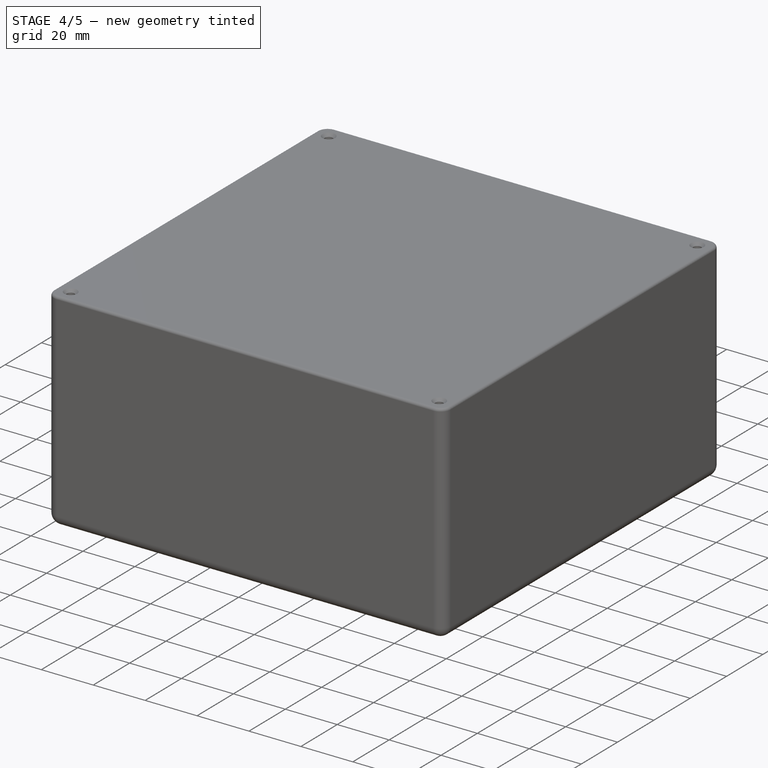
[diagram: stage 4 of 5 — iso view after this stage's code; geometry added in this stage tinted green]
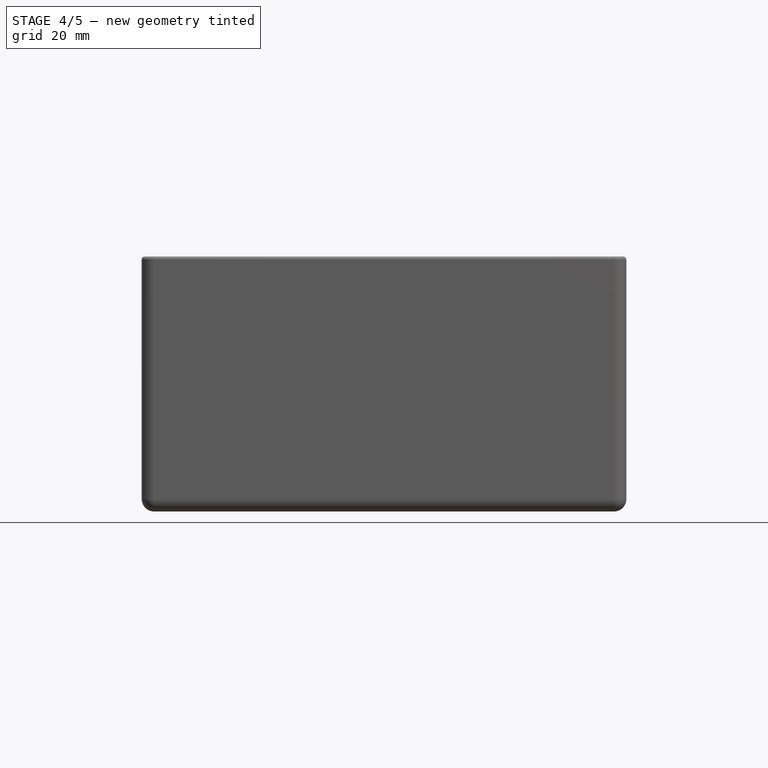
[diagram: stage 4 of 5 — front view after this stage's code; geometry added in this stage tinted green]
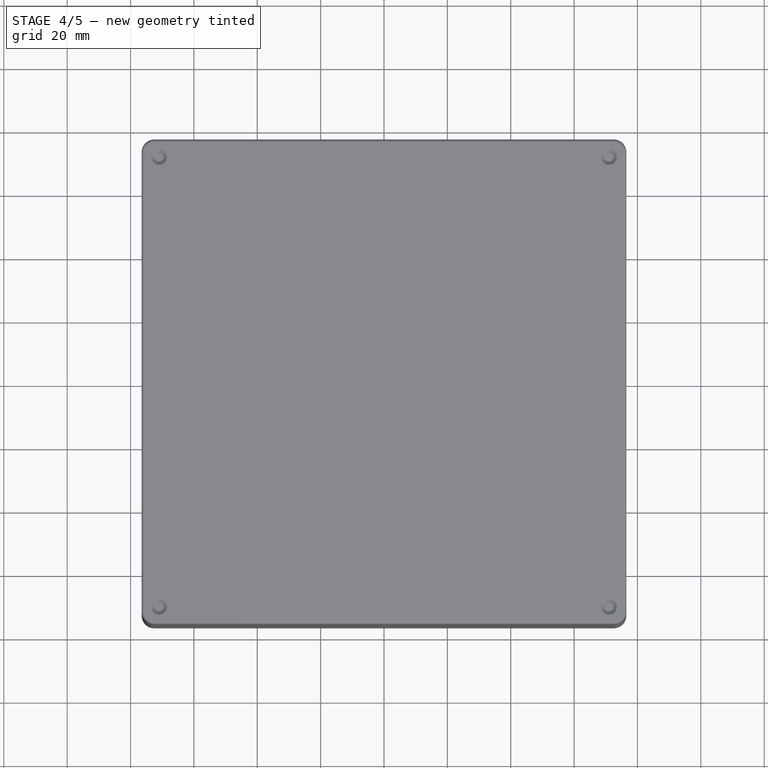
[diagram: stage 4 of 5 — top view after this stage's code; geometry added in this stage tinted green]
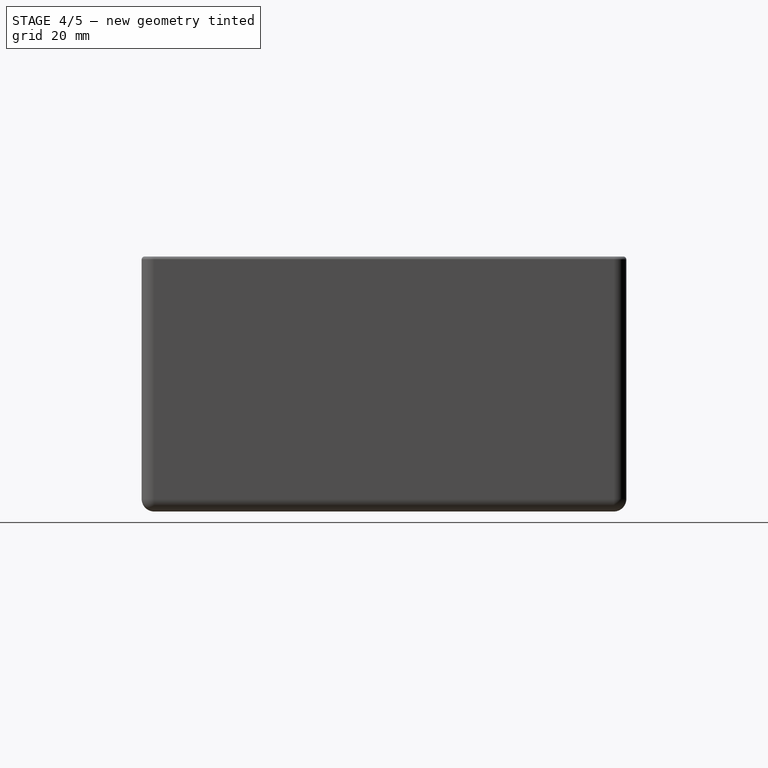
[diagram: stage 4 of 5 — right view after this stage's code; geometry added in this stage tinted green]
FEATURE [PartDesign::Body] Body001
  AllowCompound = false
  Group = -> [Sketch001,Pad001]
  Origin = -> Origin001
  Tip = -> Pad001
FEATURE [PartDesign::FeatureBase] Clone
  BaseFeature = -> Body
  Suppressed = false
FEATURE [PartDesign::FeatureBase] Clone001
  BaseFeature = -> Body001
  Suppressed = false
FEATURE [PartDesign::Body] Body002
  AllowCompound = false
  Group = -> [Clone,Boolean]
  Origin = -> Origin002
  Tip = -> Boolean
FEATURE [PartDesign::FeatureBase] Clone002
  BaseFeature = -> Body
  Suppressed = false
FEATURE [PartDesign::FeatureBase] Clone005
  BaseFeature = -> Body001
  Suppressed = false
FEATURE [PartDesign::Body] Body009
  AllowCompound = false
  Group = -> [Clone007]
  Origin = -> Origin009
  Placement = pos=(71,-71,0) rot=(0,0,1;0rad)
  Tip = -> Clone007
  expr: .Placement.Base.x = Spreadsheet.inside_width * 0.5 - 4
  expr: .Placement.Base.y = -(Spreadsheet.inside_length * 0.5 - 4)
FEATURE [PartDesign::Boolean] Boolean001
  BaseFeature = -> Clone002
  Group = -> [Body007]
  Refine = true
  Suppressed = false
  Type = 2
  UsePlacement = true
FEATURE [PartDesign::Body] Body004
  AllowCompound = false
  Group = -> [Clone002,Boolean001]
  Origin = -> Origin004
  Tip = -> Boolean001
FEATURE [PartDesign::Boolean] Boolean002
  BaseFeature = -> Clone003
  Group = -> [Body008]
  Refine = true
  Suppressed = false
  Type = 2
  UsePlacement = true
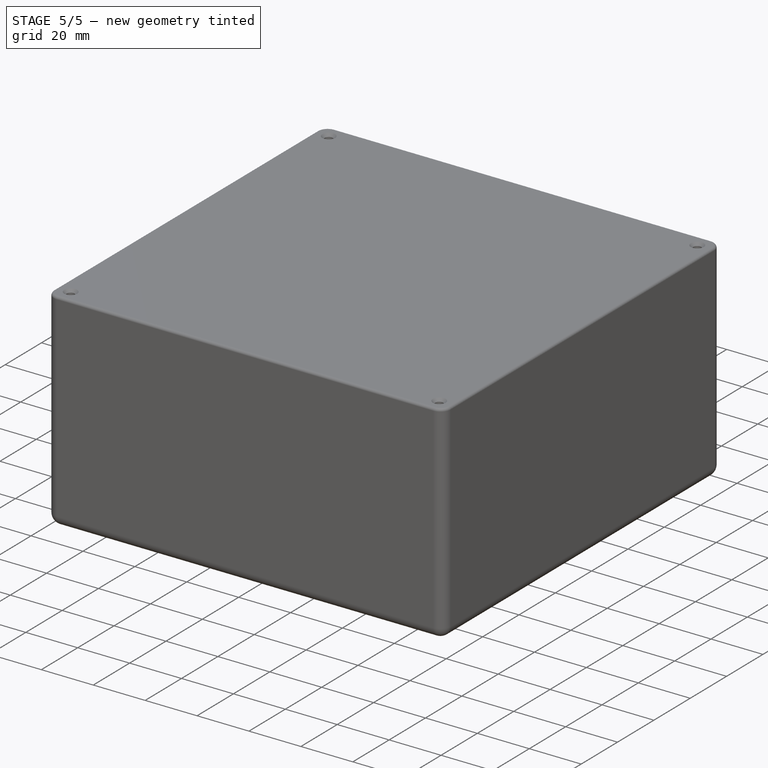
[diagram: stage 5 of 5 — iso view after this stage's code; geometry added in this stage tinted green]
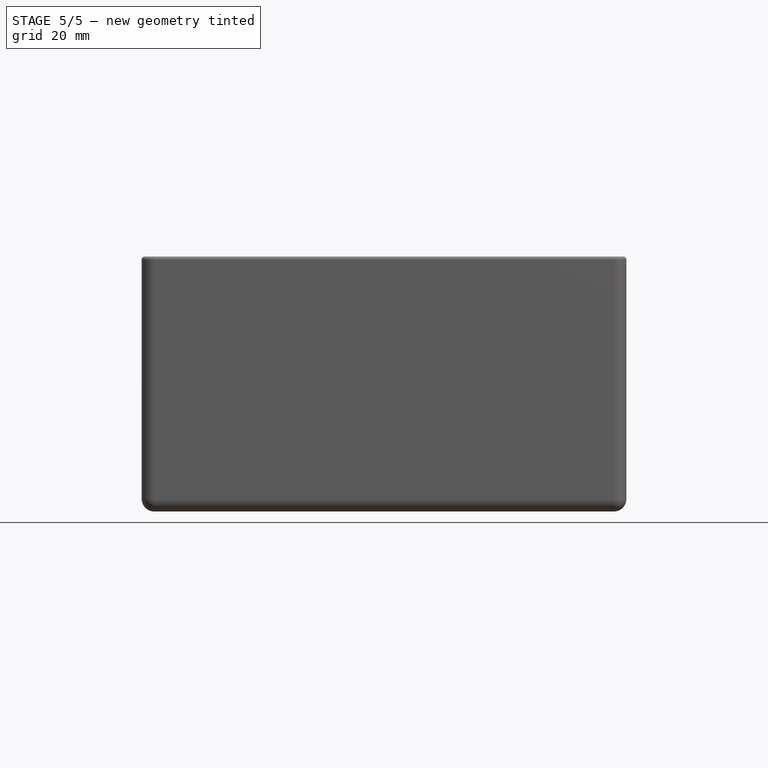
[diagram: stage 5 of 5 — front view after this stage's code; geometry added in this stage tinted green]
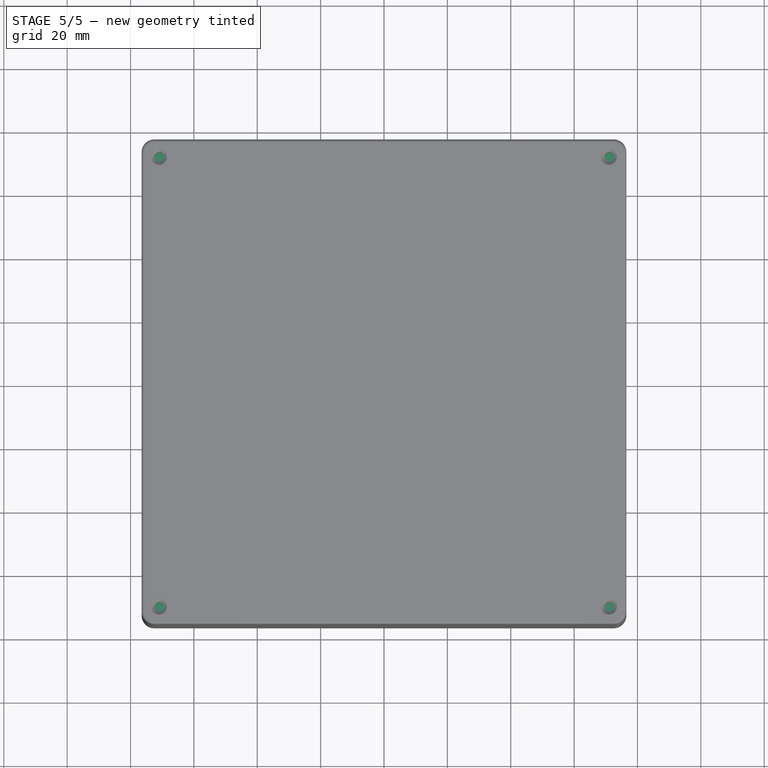
[diagram: stage 5 of 5 — top view after this stage's code; geometry added in this stage tinted green]
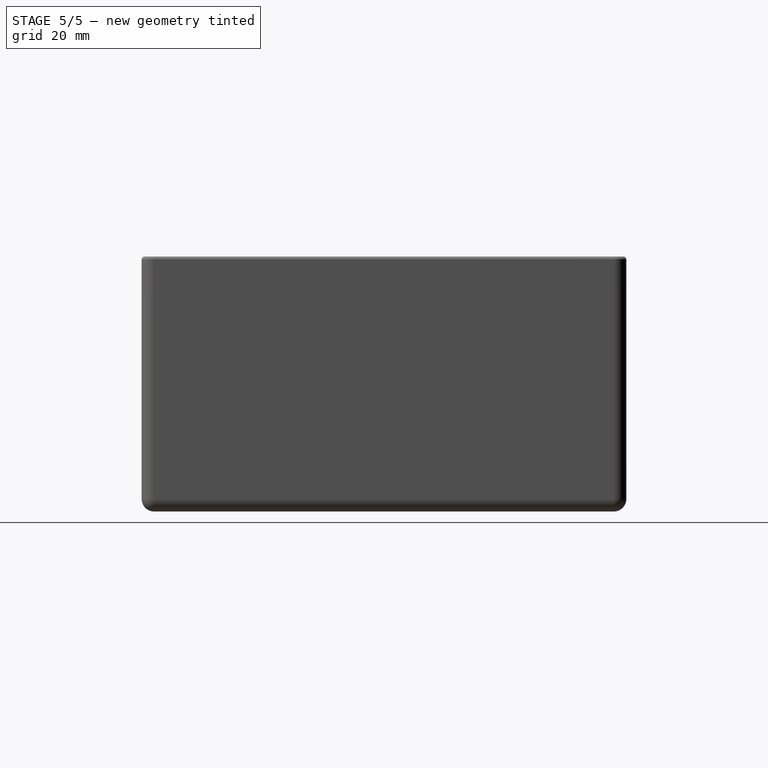
[diagram: stage 5 of 5 — right view after this stage's code; geometry added in this stage tinted green]
FEATURE [PartDesign::Body] Body003
  AllowCompound = false
  Group = -> [Clone001]
  Origin = -> Origin003
  Placement = pos=(-71,-71,0) rot=(0,0,1;4.71239rad)
  Tip = -> Clone001
  expr: .Placement.Base.x = -(Spreadsheet.inside_width * 0.5 - 4)
  expr: .Placement.Base.y = -(Spreadsheet.inside_length * 0.5 - 4)
FEATURE [PartDesign::Boolean] Boolean
  BaseFeature = -> Clone
  Group = -> [Body003]
  Refine = true
  Suppressed = false
  Type = 2
  UsePlacement = true
FEATURE [PartDesign::Boolean] Boolean004
  BaseFeature = -> Thickness
  Group = -> [Body006,Body005,Body004,Body002]
  Refine = true
  Suppressed = false
  Type = 0
  UsePlacement = true
FEATURE [PartDesign::Plane] DatumPlane
  AttachmentOffset = pos=(0,0,75) rot=(0,0,1;0rad)
  AttachmentSupport = -> [XY_Plane010]
  Length = 183.6
  MapMode = 5
  Placement = pos=(0,0,75) rot=(0,0,1;0rad)
  ResizeMode = 0
  Width = 183.6
  expr: .AttachmentOffset.Base.z = Spreadsheet.box_inside_height
FEATURE [Sketcher::SketchObject] Sketch002
  ArcFitTolerance = 1e-06
  AttachmentSupport = -> [DatumPlane]
  FullyConstrained = true
  MakeInternals = false
  MapMode = 5
  Placement = pos=(0,0,75) rot=(0,0,1;0rad)
  expr: Constraints[1] = Spreadsheet.inside_width * 0.5 - 4
  expr: Constraints[2] = Spreadsheet.inside_length * 0.5 - 4
  sketch-geometry (1):
    g0: Circle CenterX=-71 CenterY=-71 CenterZ=0 NormalX=0 NormalY=0 NormalZ=1 AngleXU=0 Radius=1.5
  constraints (3):
    c: Diameter(g0) = 3
    c: DistanceX(g0,g-1) = 71
    c: DistanceY(g0,g-1) = 71
FEATURE [PartDesign::Pocket] Pocket
  BaseFeature = -> Boolean004
  Direction = (0,0,-1)
  Length = 5
  Length2 = 5
  Profile = -> Sketch002
  ReferenceAxis = -> Sketch002 [N_Axis]
  Refine = true
  Suppressed = false
  Type = 0
FEATURE [PartDesign::Mirrored] Mirrored
  MirrorPlane = -> Sketch002 [V_Axis]
  Refine = true
  Suppressed = false
  TransformMode = 0
FEATURE [PartDesign::Mirrored] Mirrored001
  MirrorPlane = -> Sketch002 [H_Axis]
  Refine = true
  Suppressed = false
  TransformMode = 0
FEATURE [PartDesign::MultiTransform] MultiTransform
  BaseFeature = -> Pocket
  Originals = -> [Pocket]
  Refine = true
  Suppressed = false
  TransformMode = 0
  Transformations = -> [Mirrored,Mirrored001]
FEATURE [PartDesign::Fillet] Fillet001
  Base = -> MultiTransform [Edge60,Edge66,Edge64,Edge70,Edge74,Edge75,Edge76,Edge80,Edge90,Edge84,Edge86,Edge94,Edge95,Edge96,Edge72,Edge73,Edge71,Edge68,Edge61,Edge62,Edge58,Edge77,Edge82,Edge81,Edge88,Edge91,Edge93,Edge92]
  BaseFeature = -> MultiTransform
  Radius = 1
  Refine = true
  SupportTransform = false
  Suppressed = false
  UseAllEdges = false
  expr: Radius = 1
FEATURE [PartDesign::Chamfer] Chamfer
  Angle = 45
  Base = -> Fillet001 [Edge33,Edge34,Edge36,Edge35]
  BaseFeature = -> Fillet001
  ChamferType = 0
  FlipDirection = false
  Refine = true
  Size = 0.5
  Size2 = 1
  SupportTransform = false
  Suppressed = false
  UseAllEdges = false
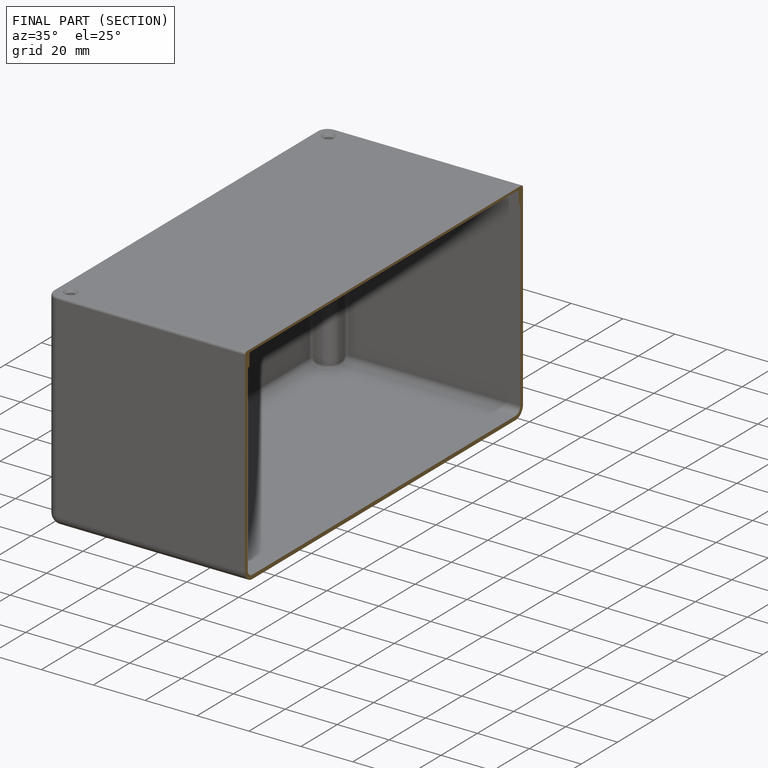
[diagram: finished part — half-section view (interior)]
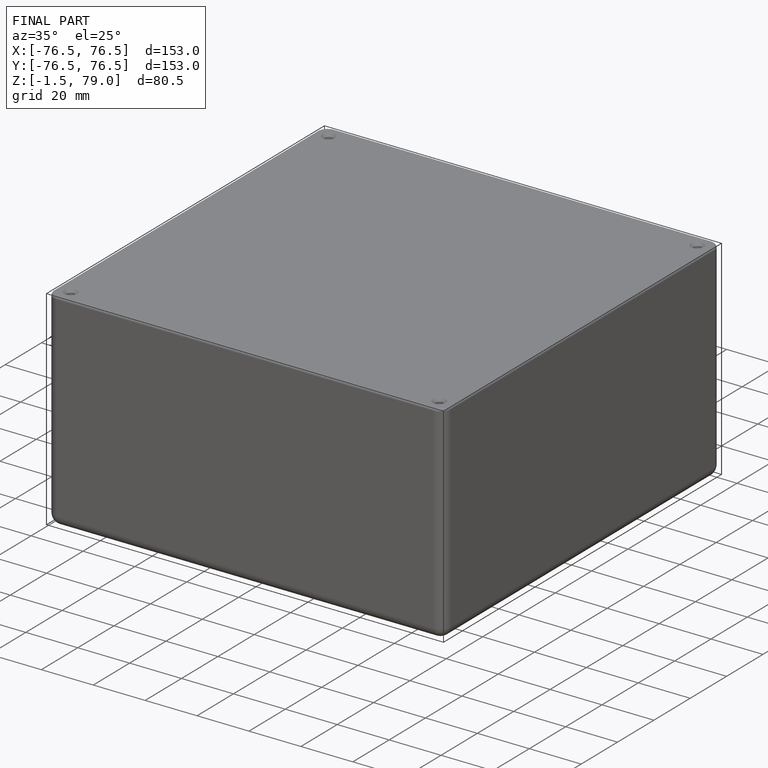
[diagram: finished part — iso view with bounding-box wireframe]
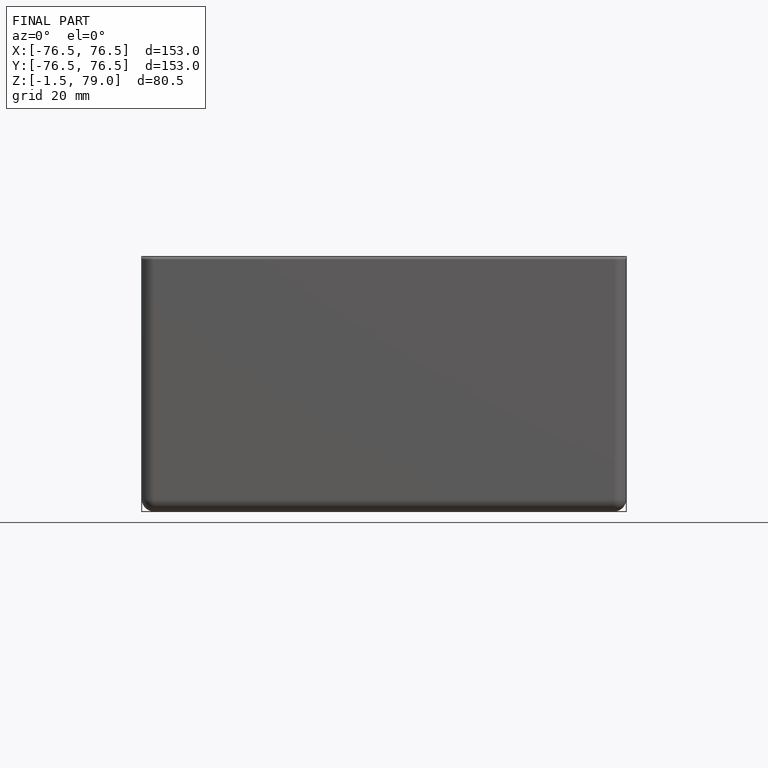
[diagram: finished part — front view with bounding-box wireframe]
